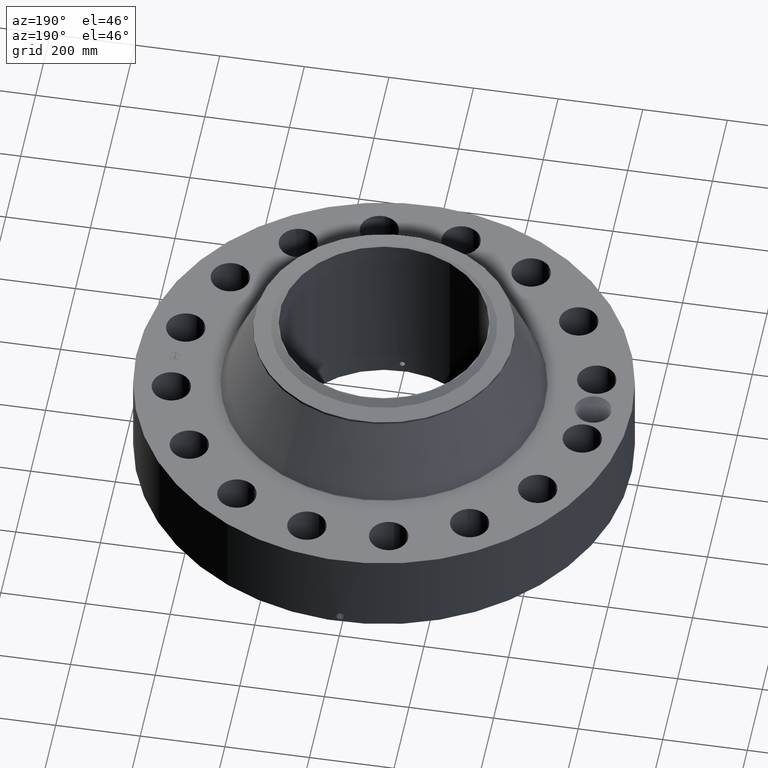
[diagram: clean part render]
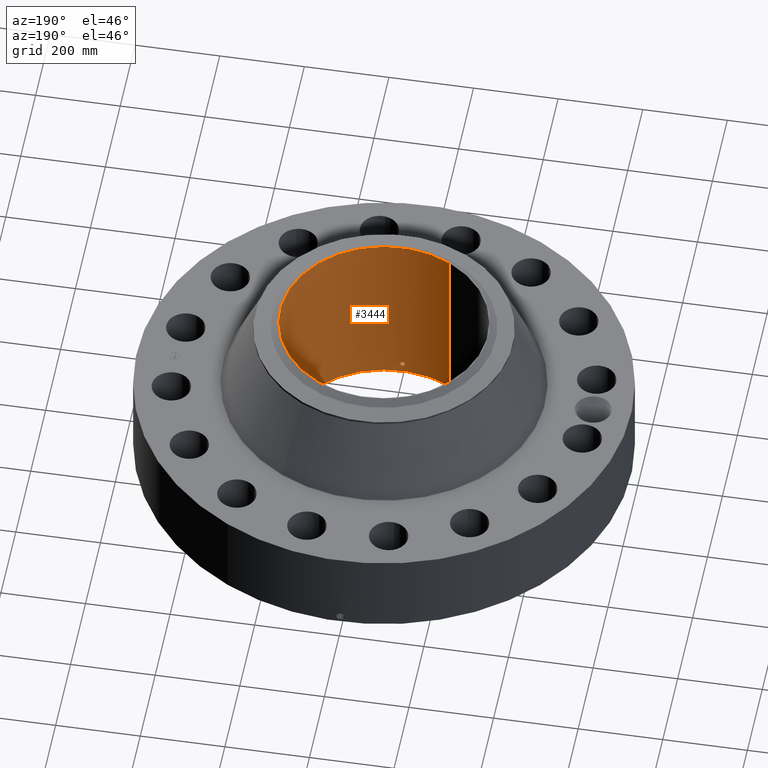
[diagram: same view with one face highlighted and labeled with its STEP entity id]
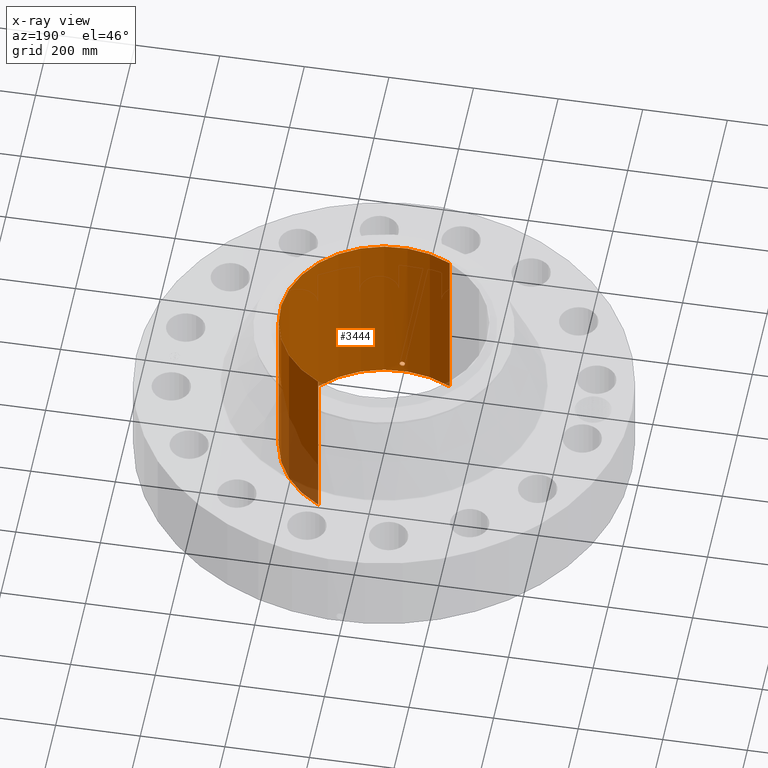
[diagram: x-ray of the same camera — body ghosted, the highlighted face saturated]
A machine part, auxiliary view. The second image highlights one B-rep face of the part: STEP entity #3444.
The next image is the same camera in x-ray: the body ghosted, the highlighted face saturated — about 9% of this face is hidden behind the body in this view.
In plain terms, the highlighted cylindrical surface (partial cylindrical patch) has radius 245.262 mm, axis along (0, 0, -1).
Its self-contained STEP definition (entity closure, byte-faithful):
#2626=AXIS2_PLACEMENT_3D('Circle Axis2P3D',#2624,#2625,$) ;
#3375=AXIS2_PLACEMENT_3D('Cylinder Axis2P3D',#3372,#3373,#3374) ;
#3379=AXIS2_PLACEMENT_3D('Circle Axis2P3D',#3377,#3378,$) ;
#2624=CARTESIAN_POINT('Axis2P3D Location',(0.,0.,0.)) ;
#2628=CARTESIAN_POINT('Vertex',(4.62933300078,8.47393721765,-8.50413353036E-014)) ;
#2630=CARTESIAN_POINT('Vertex',(-4.62933300078,-8.47393721765,-8.50413353036E-014)) ;
#3372=CARTESIAN_POINT('Axis2P3D Location',(0.,0.,8.12500000003)) ;
#3377=CARTESIAN_POINT('Axis2P3D Location',(0.,0.,16.2500000001)) ;
#3381=CARTESIAN_POINT('Vertex',(4.62933300078,8.47393721765,16.2500000001)) ;
#3383=CARTESIAN_POINT('Vertex',(-4.62933300078,-8.47393721765,16.2500000001)) ;
#3386=CARTESIAN_POINT('Line Origine',(4.62933300078,8.47393721765,8.12500000003)) ;
#3391=CARTESIAN_POINT('Line Origine',(-4.62933300078,-8.47393721765,8.12500000003)) ;
#3403=CARTESIAN_POINT('Control Point',(0.219395640473,-9.65350721519,0.820143615352)) ;
#3404=CARTESIAN_POINT('Control Point',(0.194442912261,-9.65407431683,0.774467952735)) ;
#3405=CARTESIAN_POINT('Control Point',(0.15760477185,-9.65483087369,0.735287758582)) ;
#3406=CARTESIAN_POINT('Control Point',(0.111106721135,-9.65556667099,0.706756370688)) ;
#3407=CARTESIAN_POINT('Control Point',(0.0336714257353,-9.65615208686,0.68411713611)) ;
#3408=CARTESIAN_POINT('Control Point',(-0.0446734359258,-9.65594976961,0.691943950906)) ;
#3409=CARTESIAN_POINT('Control Point',(-0.0703038607509,-9.65579271084,0.697956990722)) ;
#3410=CARTESIAN_POINT('Control Point',(-0.143960821906,-9.65509867537,0.725790552714)) ;
#3411=CARTESIAN_POINT('Control Point',(-0.203248949277,-9.65396585672,0.780507968256)) ;
#3412=CARTESIAN_POINT('Control Point',(-0.232213239312,-9.65322291151,0.826749133295)) ;
#3413=CARTESIAN_POINT('Control Point',(-0.25584111942,-9.65261223953,0.904895086829)) ;
#3414=CARTESIAN_POINT('Control Point',(-0.248281700023,-9.65280745576,0.984257717141)) ;
#3415=CARTESIAN_POINT('Control Point',(-0.242047949129,-9.65297077215,1.0108184761)) ;
#3416=CARTESIAN_POINT('Control Point',(-0.232314810488,-9.6532136007,1.03620800257)) ;
#3417=CARTESIAN_POINT('Control Point',(-0.219395640473,-9.65350721519,1.05985638466)) ;
#3418=CARTESIAN_POINT('Vertex',(0.219395640473,-9.65350721519,0.820143615352)) ;
#3420=CARTESIAN_POINT('Vertex',(-0.219395640473,-9.65350721519,1.05985638466)) ;
#3424=CARTESIAN_POINT('Control Point',(-0.219395640473,-9.65350721519,1.05985638466)) ;
#3425=CARTESIAN_POINT('Control Point',(-0.194442912261,-9.65407431683,1.10553204727)) ;
#3426=CARTESIAN_POINT('Control Point',(-0.157604771851,-9.65483087369,1.14471224142)) ;
#3427=CARTESIAN_POINT('Control Point',(-0.111106721135,-9.65556667099,1.17324362932)) ;
#3428=CARTESIAN_POINT('Control Point',(-0.033671425743,-9.65615208686,1.19588286389)) ;
#3429=CARTESIAN_POINT('Control Point',(0.04467343591,-9.65594976961,1.1880560491)) ;
#3430=CARTESIAN_POINT('Control Point',(0.070303860761,-9.65579271084,1.18204300928)) ;
#3431=CARTESIAN_POINT('Control Point',(0.143960821894,-9.65509867537,1.1542094473)) ;
#3432=CARTESIAN_POINT('Control Point',(0.203248949251,-9.65396585672,1.09949203178)) ;
#3433=CARTESIAN_POINT('Control Point',(0.232213239321,-9.65322291151,1.05325086668)) ;
#3434=CARTESIAN_POINT('Control Point',(0.255841119411,-9.65261223953,0.975104913187)) ;
#3435=CARTESIAN_POINT('Control Point',(0.248281700028,-9.65280745576,0.895742282913)) ;
#3436=CARTESIAN_POINT('Control Point',(0.242047949114,-9.65297077215,0.869181523869)) ;
#3437=CARTESIAN_POINT('Control Point',(0.232314810478,-9.6532136007,0.84379199742)) ;
#3438=CARTESIAN_POINT('Control Point',(0.219395640473,-9.65350721519,0.820143615352)) ;
#2625=DIRECTION('Axis2P3D Direction',(0.,0.,-0.0393700787402)) ;
#3373=DIRECTION('Axis2P3D Direction',(0.,0.,-0.0393700787402)) ;
#3374=DIRECTION('Axis2P3D XDirection',(-0.0188750212049,-0.0345504945626,0.)) ;
#3378=DIRECTION('Axis2P3D Direction',(0.,0.,-0.0393700787402)) ;
#3387=DIRECTION('Vector Direction',(0.,0.,-0.0393700787402)) ;
#3392=DIRECTION('Vector Direction',(0.,0.,-0.0393700787402)) ;
#3388=VECTOR('Line Direction',#3387,0.0393700787402) ;
#3393=VECTOR('Line Direction',#3392,0.0393700787402) ;
#3397=ORIENTED_EDGE('',*,*,#3385,.F.) ;
#3398=ORIENTED_EDGE('',*,*,#3390,.T.) ;
#3399=ORIENTED_EDGE('',*,*,#2632,.T.) ;
#3400=ORIENTED_EDGE('',*,*,#3395,.F.) ;
#3441=ORIENTED_EDGE('',*,*,#3422,.F.) ;
#3442=ORIENTED_EDGE('',*,*,#3439,.F.) ;
#3443=FACE_BOUND('',#3440,.T.) ;
#3444=ADVANCED_FACE('PartBody',(#3401,#3443),#3376,.F.) ;
#3402=B_SPLINE_CURVE_WITH_KNOTS('',5,(#3403,#3404,#3405,#3406,#3407,#3408,#3409,#3410,#3411,#3412,#3413,#3414,#3415,#3416,#3417),.UNSPECIFIED.,.F.,.U.,(6,3,3,3,6),(0.,9.3484878656,14.0229261879,23.3729670575,28.2131073053),.UNSPECIFIED.) ;
#3423=B_SPLINE_CURVE_WITH_KNOTS('',5,(#3424,#3425,#3426,#3427,#3428,#3429,#3430,#3431,#3432,#3433,#3434,#3435,#3436,#3437,#3438),.UNSPECIFIED.,.F.,.U.,(6,3,3,3,6),(0.,9.34848786535,14.0229261865,23.3729670532,28.2131072971),.UNSPECIFIED.) ;
#2627=CIRCLE('generated circle',#2626,9.65600000004) ;
#3380=CIRCLE('generated circle',#3379,9.65600000004) ;
#3376=CYLINDRICAL_SURFACE('generated cylinder',#3375,9.65600000004) ;
#2632=EDGE_CURVE('',#2629,#2631,#2627,.T.) ;
#3385=EDGE_CURVE('',#3382,#3384,#3380,.T.) ;
#3390=EDGE_CURVE('',#3382,#2629,#3389,.T.) ;
#3395=EDGE_CURVE('',#3384,#2631,#3394,.T.) ;
#3422=EDGE_CURVE('',#3419,#3421,#3402,.T.) ;
#3439=EDGE_CURVE('',#3421,#3419,#3423,.T.) ;
#3396=EDGE_LOOP('',(#3397,#3398,#3399,#3400)) ;
#3440=EDGE_LOOP('',(#3441,#3442)) ;
#3401=FACE_OUTER_BOUND('',#3396,.T.) ;
#3389=LINE('Line',#3386,#3388) ;
#3394=LINE('Line',#3391,#3393) ;
#2629=VERTEX_POINT('',#2628) ;
#2631=VERTEX_POINT('',#2630) ;
#3382=VERTEX_POINT('',#3381) ;
#3384=VERTEX_POINT('',#3383) ;
#3419=VERTEX_POINT('',#3418) ;
#3421=VERTEX_POINT('',#3420) ;